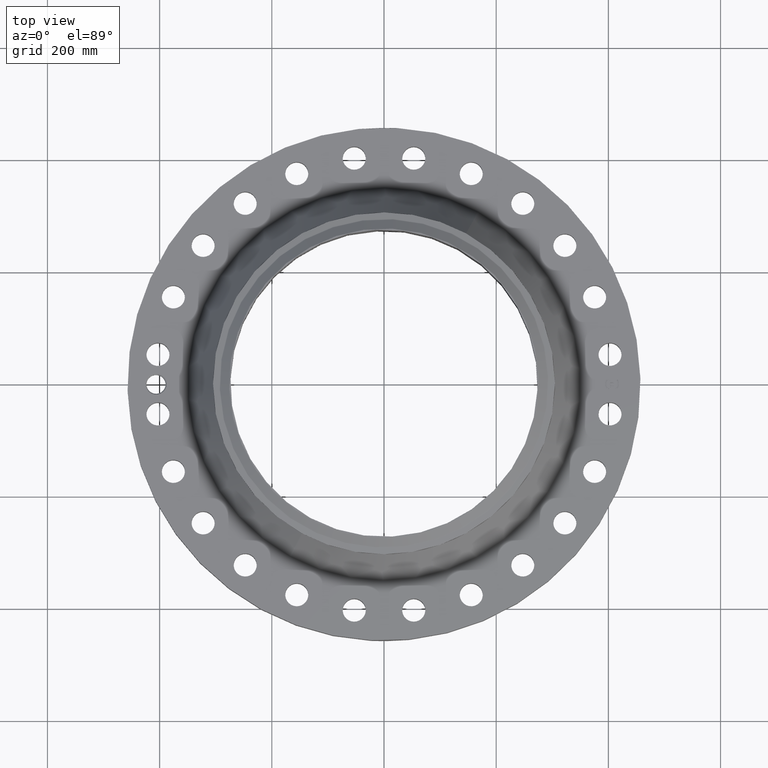
[diagram: clean part render]
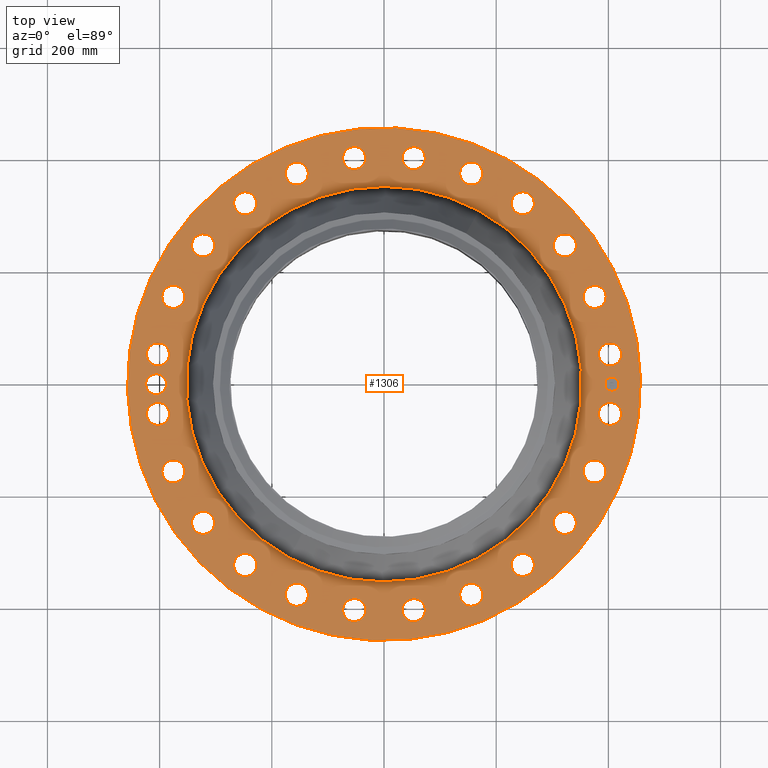
[diagram: same view with one face highlighted and labeled with its STEP entity id]
A machine part, top view. The second image highlights one B-rep face of the part: STEP entity #1306.
In plain terms, the highlighted planar face has unit normal (0, 0, -1).
Its self-contained STEP definition (entity closure, byte-faithful):
#58=AXIS2_PLACEMENT_3D('Circle Axis2P3D',#56,#57,$) ;
#686=AXIS2_PLACEMENT_3D('Circle Axis2P3D',#684,#685,$) ;
#786=AXIS2_PLACEMENT_3D('Plane Axis2P3D',#783,#784,#785) ;
#822=AXIS2_PLACEMENT_3D('Circle Axis2P3D',#820,#821,$) ;
#829=AXIS2_PLACEMENT_3D('Circle Axis2P3D',#827,#828,$) ;
#840=AXIS2_PLACEMENT_3D('Circle Axis2P3D',#838,#839,$) ;
#849=AXIS2_PLACEMENT_3D('Circle Axis2P3D',#847,#848,$) ;
#858=AXIS2_PLACEMENT_3D('Circle Axis2P3D',#856,#857,$) ;
#867=AXIS2_PLACEMENT_3D('Circle Axis2P3D',#865,#866,$) ;
#876=AXIS2_PLACEMENT_3D('Circle Axis2P3D',#874,#875,$) ;
#885=AXIS2_PLACEMENT_3D('Circle Axis2P3D',#883,#884,$) ;
#894=AXIS2_PLACEMENT_3D('Circle Axis2P3D',#892,#893,$) ;
#903=AXIS2_PLACEMENT_3D('Circle Axis2P3D',#901,#902,$) ;
#912=AXIS2_PLACEMENT_3D('Circle Axis2P3D',#910,#911,$) ;
#921=AXIS2_PLACEMENT_3D('Circle Axis2P3D',#919,#920,$) ;
#930=AXIS2_PLACEMENT_3D('Circle Axis2P3D',#928,#929,$) ;
#939=AXIS2_PLACEMENT_3D('Circle Axis2P3D',#937,#938,$) ;
#948=AXIS2_PLACEMENT_3D('Circle Axis2P3D',#946,#947,$) ;
#957=AXIS2_PLACEMENT_3D('Circle Axis2P3D',#955,#956,$) ;
#966=AXIS2_PLACEMENT_3D('Circle Axis2P3D',#964,#965,$) ;
#975=AXIS2_PLACEMENT_3D('Circle Axis2P3D',#973,#974,$) ;
#984=AXIS2_PLACEMENT_3D('Circle Axis2P3D',#982,#983,$) ;
#993=AXIS2_PLACEMENT_3D('Circle Axis2P3D',#991,#992,$) ;
#1002=AXIS2_PLACEMENT_3D('Circle Axis2P3D',#1000,#1001,$) ;
#1011=AXIS2_PLACEMENT_3D('Circle Axis2P3D',#1009,#1010,$) ;
#1020=AXIS2_PLACEMENT_3D('Circle Axis2P3D',#1018,#1019,$) ;
#1029=AXIS2_PLACEMENT_3D('Circle Axis2P3D',#1027,#1028,$) ;
#1038=AXIS2_PLACEMENT_3D('Circle Axis2P3D',#1036,#1037,$) ;
#1047=AXIS2_PLACEMENT_3D('Circle Axis2P3D',#1045,#1046,$) ;
#1056=AXIS2_PLACEMENT_3D('Circle Axis2P3D',#1054,#1055,$) ;
#1065=AXIS2_PLACEMENT_3D('Circle Axis2P3D',#1063,#1064,$) ;
#1074=AXIS2_PLACEMENT_3D('Circle Axis2P3D',#1072,#1073,$) ;
#1083=AXIS2_PLACEMENT_3D('Circle Axis2P3D',#1081,#1082,$) ;
#1092=AXIS2_PLACEMENT_3D('Circle Axis2P3D',#1090,#1091,$) ;
#1101=AXIS2_PLACEMENT_3D('Circle Axis2P3D',#1099,#1100,$) ;
#1110=AXIS2_PLACEMENT_3D('Circle Axis2P3D',#1108,#1109,$) ;
#1119=AXIS2_PLACEMENT_3D('Circle Axis2P3D',#1117,#1118,$) ;
#1128=AXIS2_PLACEMENT_3D('Circle Axis2P3D',#1126,#1127,$) ;
#1137=AXIS2_PLACEMENT_3D('Circle Axis2P3D',#1135,#1136,$) ;
#1146=AXIS2_PLACEMENT_3D('Circle Axis2P3D',#1144,#1145,$) ;
#1155=AXIS2_PLACEMENT_3D('Circle Axis2P3D',#1153,#1154,$) ;
#1164=AXIS2_PLACEMENT_3D('Circle Axis2P3D',#1162,#1163,$) ;
#1173=AXIS2_PLACEMENT_3D('Circle Axis2P3D',#1171,#1172,$) ;
#1182=AXIS2_PLACEMENT_3D('Circle Axis2P3D',#1180,#1181,$) ;
#1191=AXIS2_PLACEMENT_3D('Circle Axis2P3D',#1189,#1190,$) ;
#1200=AXIS2_PLACEMENT_3D('Circle Axis2P3D',#1198,#1199,$) ;
#1209=AXIS2_PLACEMENT_3D('Circle Axis2P3D',#1207,#1208,$) ;
#1218=AXIS2_PLACEMENT_3D('Circle Axis2P3D',#1216,#1217,$) ;
#1227=AXIS2_PLACEMENT_3D('Circle Axis2P3D',#1225,#1226,$) ;
#1236=AXIS2_PLACEMENT_3D('Circle Axis2P3D',#1234,#1235,$) ;
#1245=AXIS2_PLACEMENT_3D('Circle Axis2P3D',#1243,#1244,$) ;
#1254=AXIS2_PLACEMENT_3D('Circle Axis2P3D',#1252,#1253,$) ;
#1263=AXIS2_PLACEMENT_3D('Circle Axis2P3D',#1261,#1262,$) ;
#1272=AXIS2_PLACEMENT_3D('Circle Axis2P3D',#1270,#1271,$) ;
#1281=AXIS2_PLACEMENT_3D('Circle Axis2P3D',#1279,#1280,$) ;
#1290=AXIS2_PLACEMENT_3D('Circle Axis2P3D',#1288,#1289,$) ;
#1299=AXIS2_PLACEMENT_3D('Circle Axis2P3D',#1297,#1298,$) ;
#53=CARTESIAN_POINT('Vertex',(-8.62965969491,-15.7964861141,2.81000000001)) ;
#56=CARTESIAN_POINT('Axis2P3D Location',(0.,0.,2.81000000001)) ;
#60=CARTESIAN_POINT('Vertex',(8.62965969491,15.7964861141,2.81000000001)) ;
#684=CARTESIAN_POINT('Axis2P3D Location',(0.,0.,2.81000000001)) ;
#783=CARTESIAN_POINT('Axis2P3D Location',(0.,18.0000000001,2.81000000001)) ;
#793=CARTESIAN_POINT('Control Point',(-15.2500000001,0.,2.81000000001)) ;
#794=CARTESIAN_POINT('Control Point',(-15.2522636557,0.067368440323,2.81000000001)) ;
#795=CARTESIAN_POINT('Control Point',(-15.2620959539,0.134362458203,2.81000000001)) ;
#796=CARTESIAN_POINT('Control Point',(-15.2794431795,0.199837606875,2.81000000001)) ;
#797=CARTESIAN_POINT('Control Point',(-15.3185043249,0.299840813619,2.81000000001)) ;
#798=CARTESIAN_POINT('Control Point',(-15.3743969668,0.390606299989,2.81000000001)) ;
#799=CARTESIAN_POINT('Control Point',(-15.3973885703,0.422865715089,2.81000000001)) ;
#800=CARTESIAN_POINT('Control Point',(-15.4224510428,0.453448813399,2.81000000001)) ;
#801=CARTESIAN_POINT('Control Point',(-15.4494190683,0.482184252316,2.81000000001)) ;
#802=CARTESIAN_POINT('Vertex',(-15.2500000001,0.,2.81000000001)) ;
#804=CARTESIAN_POINT('Vertex',(-15.4494190683,0.482184252316,2.81000000001)) ;
#808=CARTESIAN_POINT('Control Point',(-15.2500000001,0.,2.81000000001)) ;
#809=CARTESIAN_POINT('Control Point',(-15.2522642724,-0.0673867935597,2.81000000001)) ;
#810=CARTESIAN_POINT('Control Point',(-15.2621012997,-0.134398962222,2.81000000001)) ;
#811=CARTESIAN_POINT('Control Point',(-15.2794475751,-0.199869113942,2.81000000001)) ;
#812=CARTESIAN_POINT('Control Point',(-15.3185243858,-0.299912176325,2.81000000001)) ;
#813=CARTESIAN_POINT('Control Point',(-15.3744144475,-0.390660983478,2.81000000001)) ;
#814=CARTESIAN_POINT('Control Point',(-15.3974350869,-0.422949173924,2.81000000001)) ;
#815=CARTESIAN_POINT('Control Point',(-15.4225255627,-0.453551402367,2.81000000001)) ;
#816=CARTESIAN_POINT('Control Point',(-15.4495190516,-0.48229839412,2.81000000001)) ;
#817=CARTESIAN_POINT('Vertex',(-15.4495190516,-0.48229839412,2.81000000001)) ;
#820=CARTESIAN_POINT('Axis2P3D Location',(-16.0000000001,-6.71378962923E-015,2.81000000001)) ;
#824=CARTESIAN_POINT('Vertex',(-16.6422807376,0.350879566067,2.81000000001)) ;
#827=CARTESIAN_POINT('Axis2P3D Location',(-16.0000000001,-6.71378962923E-015,2.81000000001)) ;
#838=CARTESIAN_POINT('Axis2P3D Location',(15.863117782,-2.08841907553,2.81000000001)) ;
#842=CARTESIAN_POINT('Vertex',(15.1522759069,-1.70008438926,2.81000000001)) ;
#844=CARTESIAN_POINT('Vertex',(16.5739596572,-2.4767537618,2.81000000001)) ;
#847=CARTESIAN_POINT('Axis2P3D Location',(15.863117782,-2.08841907553,2.81000000001)) ;
#856=CARTESIAN_POINT('Axis2P3D Location',(0.,0.,2.81000000001)) ;
#860=CARTESIAN_POINT('Vertex',(-6.65355365657,-12.1792482741,2.81000000001)) ;
#862=CARTESIAN_POINT('Vertex',(6.65355365657,12.1792482741,2.81000000001)) ;
#865=CARTESIAN_POINT('Axis2P3D Location',(0.,0.,2.81000000001)) ;
#874=CARTESIAN_POINT('Axis2P3D Location',(14.7820725202,-6.12293491787,2.81000000001)) ;
#878=CARTESIAN_POINT('Vertex',(15.3681846332,-6.68201683592,2.81000000001)) ;
#880=CARTESIAN_POINT('Vertex',(14.1959604073,-5.56385299981,2.81000000001)) ;
#883=CARTESIAN_POINT('Axis2P3D Location',(14.7820725202,-6.12293491787,2.81000000001)) ;
#892=CARTESIAN_POINT('Axis2P3D Location',(12.6936534447,-9.74018286418,2.81000000001)) ;
#896=CARTESIAN_POINT('Vertex',(13.1150932235,-10.4319115052,2.81000000001)) ;
#898=CARTESIAN_POINT('Vertex',(12.2722136659,-9.04845422313,2.81000000001)) ;
#901=CARTESIAN_POINT('Axis2P3D Location',(12.6936534447,-9.74018286418,2.81000000001)) ;
#910=CARTESIAN_POINT('Axis2P3D Location',(9.74018286418,-12.6936534447,2.81000000001)) ;
#914=CARTESIAN_POINT('Vertex',(9.9682298844,-13.470888645,2.81000000001)) ;
#916=CARTESIAN_POINT('Vertex',(9.51213584395,-11.9164182444,2.81000000001)) ;
#919=CARTESIAN_POINT('Axis2P3D Location',(9.74018286418,-12.6936534447,2.81000000001)) ;
#928=CARTESIAN_POINT('Axis2P3D Location',(6.12293491787,-14.7820725202,2.81000000001)) ;
#932=CARTESIAN_POINT('Vertex',(6.14204815195,-15.5918469853,2.81000000001)) ;
#934=CARTESIAN_POINT('Vertex',(6.10382168378,-13.9722980552,2.81000000001)) ;
#937=CARTESIAN_POINT('Axis2P3D Location',(6.12293491787,-14.7820725202,2.81000000001)) ;
#946=CARTESIAN_POINT('Axis2P3D Location',(2.08841907553,-15.863117782,2.81000000001)) ;
#950=CARTESIAN_POINT('Vertex',(1.89729598816,-16.6502467203,2.81000000001)) ;
#952=CARTESIAN_POINT('Vertex',(2.2795421629,-15.0759888438,2.81000000001)) ;
#955=CARTESIAN_POINT('Axis2P3D Location',(2.08841907553,-15.863117782,2.81000000001)) ;
#964=CARTESIAN_POINT('Axis2P3D Location',(-2.08841907553,-15.863117782,2.81000000001)) ;
#968=CARTESIAN_POINT('Vertex',(-2.4767537618,-16.5739596572,2.81000000001)) ;
#970=CARTESIAN_POINT('Vertex',(-1.70008438926,-15.1522759069,2.81000000001)) ;
#973=CARTESIAN_POINT('Axis2P3D Location',(-2.08841907553,-15.863117782,2.81000000001)) ;
#982=CARTESIAN_POINT('Axis2P3D Location',(-6.12293491787,-14.7820725202,2.81000000001)) ;
#986=CARTESIAN_POINT('Vertex',(-6.68201683592,-15.3681846332,2.81000000001)) ;
#988=CARTESIAN_POINT('Vertex',(-5.56385299981,-14.1959604073,2.81000000001)) ;
#991=CARTESIAN_POINT('Axis2P3D Location',(-6.12293491787,-14.7820725202,2.81000000001)) ;
#1000=CARTESIAN_POINT('Axis2P3D Location',(-9.74018286418,-12.6936534447,2.81000000001)) ;
#1004=CARTESIAN_POINT('Vertex',(-10.4319115052,-13.1150932235,2.81000000001)) ;
#1006=CARTESIAN_POINT('Vertex',(-9.04845422313,-12.2722136659,2.81000000001)) ;
#1009=CARTESIAN_POINT('Axis2P3D Location',(-9.74018286418,-12.6936534447,2.81000000001)) ;
#1018=CARTESIAN_POINT('Axis2P3D Location',(-12.6936534447,-9.74018286418,2.81000000001)) ;
#1022=CARTESIAN_POINT('Vertex',(-13.470888645,-9.9682298844,2.81000000001)) ;
#1024=CARTESIAN_POINT('Vertex',(-11.9164182444,-9.51213584395,2.81000000001)) ;
#1027=CARTESIAN_POINT('Axis2P3D Location',(-12.6936534447,-9.74018286418,2.81000000001)) ;
#1036=CARTESIAN_POINT('Axis2P3D Location',(-14.7820725202,-6.12293491787,2.81000000001)) ;
#1040=CARTESIAN_POINT('Vertex',(-15.5918469853,-6.14204815195,2.81000000001)) ;
#1042=CARTESIAN_POINT('Vertex',(-13.9722980552,-6.10382168378,2.81000000001)) ;
#1045=CARTESIAN_POINT('Axis2P3D Location',(-14.7820725202,-6.12293491787,2.81000000001)) ;
#1054=CARTESIAN_POINT('Axis2P3D Location',(-15.863117782,-2.08841907553,2.81000000001)) ;
#1058=CARTESIAN_POINT('Vertex',(-16.6502467203,-1.89729598816,2.81000000001)) ;
#1060=CARTESIAN_POINT('Vertex',(-15.0759888438,-2.2795421629,2.81000000001)) ;
#1063=CARTESIAN_POINT('Axis2P3D Location',(-15.863117782,-2.08841907553,2.81000000001)) ;
#1072=CARTESIAN_POINT('Axis2P3D Location',(-15.863117782,2.08841907553,2.81000000001)) ;
#1076=CARTESIAN_POINT('Vertex',(-16.5739596572,2.4767537618,2.81000000001)) ;
#1078=CARTESIAN_POINT('Vertex',(-15.1522759069,1.70008438926,2.81000000001)) ;
#1081=CARTESIAN_POINT('Axis2P3D Location',(-15.863117782,2.08841907553,2.81000000001)) ;
#1090=CARTESIAN_POINT('Axis2P3D Location',(-14.7820725202,6.12293491787,2.81000000001)) ;
#1094=CARTESIAN_POINT('Vertex',(-15.3681846332,6.68201683592,2.81000000001)) ;
#1096=CARTESIAN_POINT('Vertex',(-14.1959604073,5.56385299981,2.81000000001)) ;
#1099=CARTESIAN_POINT('Axis2P3D Location',(-14.7820725202,6.12293491787,2.81000000001)) ;
#1108=CARTESIAN_POINT('Axis2P3D Location',(-12.6936534447,9.74018286418,2.81000000001)) ;
#1112=CARTESIAN_POINT('Vertex',(-13.1150932235,10.4319115052,2.81000000001)) ;
#1114=CARTESIAN_POINT('Vertex',(-12.2722136659,9.04845422313,2.81000000001)) ;
#1117=CARTESIAN_POINT('Axis2P3D Location',(-12.6936534447,9.74018286418,2.81000000001)) ;
#1126=CARTESIAN_POINT('Axis2P3D Location',(-9.74018286418,12.6936534447,2.81000000001)) ;
#1130=CARTESIAN_POINT('Vertex',(-9.96822988441,13.470888645,2.81000000001)) ;
#1132=CARTESIAN_POINT('Vertex',(-9.51213584395,11.9164182444,2.81000000001)) ;
#1135=CARTESIAN_POINT('Axis2P3D Location',(-9.74018286418,12.6936534447,2.81000000001)) ;
#1144=CARTESIAN_POINT('Axis2P3D Location',(-6.12293491787,14.7820725202,2.81000000001)) ;
#1148=CARTESIAN_POINT('Vertex',(-6.14204815195,15.5918469853,2.81000000001)) ;
#1150=CARTESIAN_POINT('Vertex',(-6.10382168378,13.9722980552,2.81000000001)) ;
#1153=CARTESIAN_POINT('Axis2P3D Location',(-6.12293491787,14.7820725202,2.81000000001)) ;
#1162=CARTESIAN_POINT('Axis2P3D Location',(-2.08841907553,15.863117782,2.81000000001)) ;
#1166=CARTESIAN_POINT('Vertex',(-1.89729598816,16.6502467203,2.81000000001)) ;
#1168=CARTESIAN_POINT('Vertex',(-2.2795421629,15.0759888438,2.81000000001)) ;
#1171=CARTESIAN_POINT('Axis2P3D Location',(-2.08841907553,15.863117782,2.81000000001)) ;
#1180=CARTESIAN_POINT('Axis2P3D Location',(2.08841907553,15.863117782,2.81000000001)) ;
#1184=CARTESIAN_POINT('Vertex',(2.4767537618,16.5739596572,2.81000000001)) ;
#1186=CARTESIAN_POINT('Vertex',(1.70008438926,15.1522759069,2.81000000001)) ;
#1189=CARTESIAN_POINT('Axis2P3D Location',(2.08841907553,15.863117782,2.81000000001)) ;
#1198=CARTESIAN_POINT('Axis2P3D Location',(6.12293491787,14.7820725202,2.81000000001)) ;
#1202=CARTESIAN_POINT('Vertex',(6.68201683592,15.3681846332,2.81000000001)) ;
#1204=CARTESIAN_POINT('Vertex',(5.56385299981,14.1959604073,2.81000000001)) ;
#1207=CARTESIAN_POINT('Axis2P3D Location',(6.12293491787,14.7820725202,2.81000000001)) ;
#1216=CARTESIAN_POINT('Axis2P3D Location',(9.74018286418,12.6936534447,2.81000000001)) ;
#1220=CARTESIAN_POINT('Vertex',(10.4319115052,13.1150932235,2.81000000001)) ;
#1222=CARTESIAN_POINT('Vertex',(9.04845422313,12.2722136659,2.81000000001)) ;
#1225=CARTESIAN_POINT('Axis2P3D Location',(9.74018286418,12.6936534447,2.81000000001)) ;
#1234=CARTESIAN_POINT('Axis2P3D Location',(12.6936534447,9.74018286418,2.81000000001)) ;
#1238=CARTESIAN_POINT('Vertex',(13.470888645,9.96822988441,2.81000000001)) ;
#1240=CARTESIAN_POINT('Vertex',(11.9164182444,9.51213584395,2.81000000001)) ;
#1243=CARTESIAN_POINT('Axis2P3D Location',(12.6936534447,9.74018286418,2.81000000001)) ;
#1252=CARTESIAN_POINT('Axis2P3D Location',(14.7820725202,6.12293491787,2.81000000001)) ;
#1256=CARTESIAN_POINT('Vertex',(15.5918469853,6.14204815195,2.81000000001)) ;
#1258=CARTESIAN_POINT('Vertex',(13.9722980552,6.10382168378,2.81000000001)) ;
#1261=CARTESIAN_POINT('Axis2P3D Location',(14.7820725202,6.12293491787,2.81000000001)) ;
#1270=CARTESIAN_POINT('Axis2P3D Location',(15.863117782,2.08841907553,2.81000000001)) ;
#1274=CARTESIAN_POINT('Vertex',(16.6502467203,1.89729598816,2.81000000001)) ;
#1276=CARTESIAN_POINT('Vertex',(15.0759888438,2.2795421629,2.81000000001)) ;
#1279=CARTESIAN_POINT('Axis2P3D Location',(15.863117782,2.08841907553,2.81000000001)) ;
#1288=CARTESIAN_POINT('Axis2P3D Location',(16.0000000001,0.,2.81000000001)) ;
#1292=CARTESIAN_POINT('Vertex',(16.0000000001,0.499999995002,2.81000000001)) ;
#1294=CARTESIAN_POINT('Vertex',(16.0000000001,-0.499999995002,2.81000000001)) ;
#1297=CARTESIAN_POINT('Axis2P3D Location',(16.0000000001,0.,2.81000000001)) ;
#57=DIRECTION('Axis2P3D Direction',(0.,0.,-0.0393700787402)) ;
#685=DIRECTION('Axis2P3D Direction',(0.,0.,-0.0393700787402)) ;
#784=DIRECTION('Axis2P3D Direction',(0.,0.,-0.0393700787402)) ;
#785=DIRECTION('Axis2P3D XDirection',(0.0393700787402,0.,0.)) ;
#821=DIRECTION('Axis2P3D Direction',(0.,0.,-0.0393700787402)) ;
#828=DIRECTION('Axis2P3D Direction',(0.,0.,-0.0393700787402)) ;
#839=DIRECTION('Axis2P3D Direction',(0.,0.,-0.0393700787402)) ;
#848=DIRECTION('Axis2P3D Direction',(0.,0.,-0.0393700787402)) ;
#857=DIRECTION('Axis2P3D Direction',(0.,0.,-0.0393700787402)) ;
#866=DIRECTION('Axis2P3D Direction',(0.,0.,-0.0393700787402)) ;
#875=DIRECTION('Axis2P3D Direction',(0.,0.,-0.0393700787402)) ;
#884=DIRECTION('Axis2P3D Direction',(0.,0.,-0.0393700787402)) ;
#893=DIRECTION('Axis2P3D Direction',(0.,0.,-0.0393700787402)) ;
#902=DIRECTION('Axis2P3D Direction',(0.,0.,-0.0393700787402)) ;
#911=DIRECTION('Axis2P3D Direction',(0.,0.,-0.0393700787402)) ;
#920=DIRECTION('Axis2P3D Direction',(0.,0.,-0.0393700787402)) ;
#929=DIRECTION('Axis2P3D Direction',(0.,0.,-0.0393700787402)) ;
#938=DIRECTION('Axis2P3D Direction',(0.,0.,-0.0393700787402)) ;
#947=DIRECTION('Axis2P3D Direction',(0.,0.,-0.0393700787402)) ;
#956=DIRECTION('Axis2P3D Direction',(0.,0.,-0.0393700787402)) ;
#965=DIRECTION('Axis2P3D Direction',(0.,0.,-0.0393700787402)) ;
#974=DIRECTION('Axis2P3D Direction',(0.,0.,-0.0393700787402)) ;
#983=DIRECTION('Axis2P3D Direction',(0.,0.,-0.0393700787402)) ;
#992=DIRECTION('Axis2P3D Direction',(0.,0.,-0.0393700787402)) ;
#1001=DIRECTION('Axis2P3D Direction',(0.,0.,-0.0393700787402)) ;
#1010=DIRECTION('Axis2P3D Direction',(0.,0.,-0.0393700787402)) ;
#1019=DIRECTION('Axis2P3D Direction',(0.,0.,-0.0393700787402)) ;
#1028=DIRECTION('Axis2P3D Direction',(0.,0.,-0.0393700787402)) ;
#1037=DIRECTION('Axis2P3D Direction',(0.,0.,-0.0393700787402)) ;
#1046=DIRECTION('Axis2P3D Direction',(0.,0.,-0.0393700787402)) ;
#1055=DIRECTION('Axis2P3D Direction',(0.,0.,-0.0393700787402)) ;
#1064=DIRECTION('Axis2P3D Direction',(0.,0.,-0.0393700787402)) ;
#1073=DIRECTION('Axis2P3D Direction',(0.,0.,-0.0393700787402)) ;
#1082=DIRECTION('Axis2P3D Direction',(0.,0.,-0.0393700787402)) ;
#1091=DIRECTION('Axis2P3D Direction',(0.,0.,-0.0393700787402)) ;
#1100=DIRECTION('Axis2P3D Direction',(0.,0.,-0.0393700787402)) ;
#1109=DIRECTION('Axis2P3D Direction',(0.,0.,-0.0393700787402)) ;
#1118=DIRECTION('Axis2P3D Direction',(0.,0.,-0.0393700787402)) ;
#1127=DIRECTION('Axis2P3D Direction',(0.,0.,-0.0393700787402)) ;
#1136=DIRECTION('Axis2P3D Direction',(0.,0.,-0.0393700787402)) ;
#1145=DIRECTION('Axis2P3D Direction',(0.,0.,-0.0393700787402)) ;
#1154=DIRECTION('Axis2P3D Direction',(0.,0.,-0.0393700787402)) ;
#1163=DIRECTION('Axis2P3D Direction',(0.,0.,-0.0393700787402)) ;
#1172=DIRECTION('Axis2P3D Direction',(0.,0.,-0.0393700787402)) ;
#1181=DIRECTION('Axis2P3D Direction',(0.,0.,-0.0393700787402)) ;
#1190=DIRECTION('Axis2P3D Direction',(0.,0.,-0.0393700787402)) ;
#1199=DIRECTION('Axis2P3D Direction',(0.,0.,-0.0393700787402)) ;
#1208=DIRECTION('Axis2P3D Direction',(0.,0.,-0.0393700787402)) ;
#1217=DIRECTION('Axis2P3D Direction',(0.,0.,-0.0393700787402)) ;
#1226=DIRECTION('Axis2P3D Direction',(0.,0.,-0.0393700787402)) ;
#1235=DIRECTION('Axis2P3D Direction',(0.,0.,-0.0393700787402)) ;
#1244=DIRECTION('Axis2P3D Direction',(0.,0.,-0.0393700787402)) ;
#1253=DIRECTION('Axis2P3D Direction',(0.,0.,-0.0393700787402)) ;
#1262=DIRECTION('Axis2P3D Direction',(0.,0.,-0.0393700787402)) ;
#1271=DIRECTION('Axis2P3D Direction',(0.,0.,-0.0393700787402)) ;
#1280=DIRECTION('Axis2P3D Direction',(0.,0.,-0.0393700787402)) ;
#1289=DIRECTION('Axis2P3D Direction',(0.,0.,-0.0393700787402)) ;
#1298=DIRECTION('Axis2P3D Direction',(0.,0.,-0.0393700787402)) ;
#789=ORIENTED_EDGE('',*,*,#688,.F.) ;
#790=ORIENTED_EDGE('',*,*,#62,.F.) ;
#833=ORIENTED_EDGE('',*,*,#806,.F.) ;
#834=ORIENTED_EDGE('',*,*,#819,.T.) ;
#835=ORIENTED_EDGE('',*,*,#826,.T.) ;
#836=ORIENTED_EDGE('',*,*,#831,.T.) ;
#853=ORIENTED_EDGE('',*,*,#846,.T.) ;
#854=ORIENTED_EDGE('',*,*,#851,.T.) ;
#871=ORIENTED_EDGE('',*,*,#864,.T.) ;
#872=ORIENTED_EDGE('',*,*,#869,.T.) ;
#889=ORIENTED_EDGE('',*,*,#882,.T.) ;
#890=ORIENTED_EDGE('',*,*,#887,.T.) ;
#907=ORIENTED_EDGE('',*,*,#900,.T.) ;
#908=ORIENTED_EDGE('',*,*,#905,.T.) ;
#925=ORIENTED_EDGE('',*,*,#918,.T.) ;
#926=ORIENTED_EDGE('',*,*,#923,.T.) ;
#943=ORIENTED_EDGE('',*,*,#936,.T.) ;
#944=ORIENTED_EDGE('',*,*,#941,.T.) ;
#961=ORIENTED_EDGE('',*,*,#954,.T.) ;
#962=ORIENTED_EDGE('',*,*,#959,.T.) ;
#979=ORIENTED_EDGE('',*,*,#972,.T.) ;
#980=ORIENTED_EDGE('',*,*,#977,.T.) ;
#997=ORIENTED_EDGE('',*,*,#990,.T.) ;
#998=ORIENTED_EDGE('',*,*,#995,.T.) ;
#1015=ORIENTED_EDGE('',*,*,#1008,.T.) ;
#1016=ORIENTED_EDGE('',*,*,#1013,.T.) ;
#1033=ORIENTED_EDGE('',*,*,#1026,.T.) ;
#1034=ORIENTED_EDGE('',*,*,#1031,.T.) ;
#1051=ORIENTED_EDGE('',*,*,#1044,.T.) ;
#1052=ORIENTED_EDGE('',*,*,#1049,.T.) ;
#1069=ORIENTED_EDGE('',*,*,#1062,.T.) ;
#1070=ORIENTED_EDGE('',*,*,#1067,.T.) ;
#1087=ORIENTED_EDGE('',*,*,#1080,.T.) ;
#1088=ORIENTED_EDGE('',*,*,#1085,.T.) ;
#1105=ORIENTED_EDGE('',*,*,#1098,.T.) ;
#1106=ORIENTED_EDGE('',*,*,#1103,.T.) ;
#1123=ORIENTED_EDGE('',*,*,#1116,.T.) ;
#1124=ORIENTED_EDGE('',*,*,#1121,.T.) ;
#1141=ORIENTED_EDGE('',*,*,#1134,.T.) ;
#1142=ORIENTED_EDGE('',*,*,#1139,.T.) ;
#1159=ORIENTED_EDGE('',*,*,#1152,.T.) ;
#1160=ORIENTED_EDGE('',*,*,#1157,.T.) ;
#1177=ORIENTED_EDGE('',*,*,#1170,.T.) ;
#1178=ORIENTED_EDGE('',*,*,#1175,.T.) ;
#1195=ORIENTED_EDGE('',*,*,#1188,.T.) ;
#1196=ORIENTED_EDGE('',*,*,#1193,.T.) ;
#1213=ORIENTED_EDGE('',*,*,#1206,.T.) ;
#1214=ORIENTED_EDGE('',*,*,#1211,.T.) ;
#1231=ORIENTED_EDGE('',*,*,#1224,.T.) ;
#1232=ORIENTED_EDGE('',*,*,#1229,.T.) ;
#1249=ORIENTED_EDGE('',*,*,#1242,.T.) ;
#1250=ORIENTED_EDGE('',*,*,#1247,.T.) ;
#1267=ORIENTED_EDGE('',*,*,#1260,.T.) ;
#1268=ORIENTED_EDGE('',*,*,#1265,.T.) ;
#1285=ORIENTED_EDGE('',*,*,#1278,.T.) ;
#1286=ORIENTED_EDGE('',*,*,#1283,.T.) ;
#1303=ORIENTED_EDGE('',*,*,#1296,.T.) ;
#1304=ORIENTED_EDGE('',*,*,#1301,.T.) ;
#837=FACE_BOUND('',#832,.T.) ;
#855=FACE_BOUND('',#852,.T.) ;
#873=FACE_BOUND('',#870,.T.) ;
#891=FACE_BOUND('',#888,.T.) ;
#909=FACE_BOUND('',#906,.T.) ;
#927=FACE_BOUND('',#924,.T.) ;
#945=FACE_BOUND('',#942,.T.) ;
#963=FACE_BOUND('',#960,.T.) ;
#981=FACE_BOUND('',#978,.T.) ;
#999=FACE_BOUND('',#996,.T.) ;
#1017=FACE_BOUND('',#1014,.T.) ;
#1035=FACE_BOUND('',#1032,.T.) ;
#1053=FACE_BOUND('',#1050,.T.) ;
#1071=FACE_BOUND('',#1068,.T.) ;
#1089=FACE_BOUND('',#1086,.T.) ;
#1107=FACE_BOUND('',#1104,.T.) ;
#1125=FACE_BOUND('',#1122,.T.) ;
#1143=FACE_BOUND('',#1140,.T.) ;
#1161=FACE_BOUND('',#1158,.T.) ;
#1179=FACE_BOUND('',#1176,.T.) ;
#1197=FACE_BOUND('',#1194,.T.) ;
#1215=FACE_BOUND('',#1212,.T.) ;
#1233=FACE_BOUND('',#1230,.T.) ;
#1251=FACE_BOUND('',#1248,.T.) ;
#1269=FACE_BOUND('',#1266,.T.) ;
#1287=FACE_BOUND('',#1284,.T.) ;
#1305=FACE_BOUND('',#1302,.T.) ;
#1306=ADVANCED_FACE('PartBody',(#791,#837,#855,#873,#891,#909,#927,#945,#963,#981,#999,#1017,#1035,#1053,#1071,#1089,#1107,#1125,#1143,#1161,#1179,#1197,#1215,#1233,#1251,#1269,#1287,#1305),#787,.F.) ;
#792=B_SPLINE_CURVE_WITH_KNOTS('',5,(#793,#794,#795,#796,#797,#798,#799,#800,#801),.UNSPECIFIED.,.F.,.U.,(6,3,6),(0.,11.8008766732,18.7839550773),.UNSPECIFIED.) ;
#807=B_SPLINE_CURVE_WITH_KNOTS('',5,(#808,#809,#810,#811,#812,#813,#814,#815,#816),.UNSPECIFIED.,.F.,.U.,(6,3,6),(0.,11.8040915953,18.8043463733),.UNSPECIFIED.) ;
#59=CIRCLE('generated circle',#58,18.0000000001) ;
#687=CIRCLE('generated circle',#686,18.0000000001) ;
#823=CIRCLE('generated circle',#822,0.731875000003) ;
#830=CIRCLE('generated circle',#829,0.731875000003) ;
#841=CIRCLE('generated circle',#840,0.810000000003) ;
#850=CIRCLE('generated circle',#849,0.810000000003) ;
#859=CIRCLE('generated circle',#858,13.8781794477) ;
#868=CIRCLE('generated circle',#867,13.8781794477) ;
#877=CIRCLE('generated circle',#876,0.810000000003) ;
#886=CIRCLE('generated circle',#885,0.810000000003) ;
#895=CIRCLE('generated circle',#894,0.810000000003) ;
#904=CIRCLE('generated circle',#903,0.810000000003) ;
#913=CIRCLE('generated circle',#912,0.810000000003) ;
#922=CIRCLE('generated circle',#921,0.810000000003) ;
#931=CIRCLE('generated circle',#930,0.810000000003) ;
#940=CIRCLE('generated circle',#939,0.810000000003) ;
#949=CIRCLE('generated circle',#948,0.810000000003) ;
#958=CIRCLE('generated circle',#957,0.810000000003) ;
#967=CIRCLE('generated circle',#966,0.810000000003) ;
#976=CIRCLE('generated circle',#975,0.810000000003) ;
#985=CIRCLE('generated circle',#984,0.810000000003) ;
#994=CIRCLE('generated circle',#993,0.810000000003) ;
#1003=CIRCLE('generated circle',#1002,0.810000000003) ;
#1012=CIRCLE('generated circle',#1011,0.810000000003) ;
#1021=CIRCLE('generated circle',#1020,0.810000000003) ;
#1030=CIRCLE('generated circle',#1029,0.810000000003) ;
#1039=CIRCLE('generated circle',#1038,0.810000000003) ;
#1048=CIRCLE('generated circle',#1047,0.810000000003) ;
#1057=CIRCLE('generated circle',#1056,0.810000000003) ;
#1066=CIRCLE('generated circle',#1065,0.810000000003) ;
#1075=CIRCLE('generated circle',#1074,0.810000000003) ;
#1084=CIRCLE('generated circle',#1083,0.810000000003) ;
#1093=CIRCLE('generated circle',#1092,0.810000000003) ;
#1102=CIRCLE('generated circle',#1101,0.810000000003) ;
#1111=CIRCLE('generated circle',#1110,0.810000000003) ;
#1120=CIRCLE('generated circle',#1119,0.810000000003) ;
#1129=CIRCLE('generated circle',#1128,0.810000000003) ;
#1138=CIRCLE('generated circle',#1137,0.810000000003) ;
#1147=CIRCLE('generated circle',#1146,0.810000000003) ;
#1156=CIRCLE('generated circle',#1155,0.810000000003) ;
#1165=CIRCLE('generated circle',#1164,0.810000000003) ;
#1174=CIRCLE('generated circle',#1173,0.810000000003) ;
#1183=CIRCLE('generated circle',#1182,0.810000000003) ;
#1192=CIRCLE('generated circle',#1191,0.810000000003) ;
#1201=CIRCLE('generated circle',#1200,0.810000000003) ;
#1210=CIRCLE('generated circle',#1209,0.810000000003) ;
#1219=CIRCLE('generated circle',#1218,0.810000000003) ;
#1228=CIRCLE('generated circle',#1227,0.810000000003) ;
#1237=CIRCLE('generated circle',#1236,0.810000000003) ;
#1246=CIRCLE('generated circle',#1245,0.810000000003) ;
#1255=CIRCLE('generated circle',#1254,0.810000000003) ;
#1264=CIRCLE('generated circle',#1263,0.810000000003) ;
#1273=CIRCLE('generated circle',#1272,0.810000000003) ;
#1282=CIRCLE('generated circle',#1281,0.810000000003) ;
#1291=CIRCLE('generated circle',#1290,0.499999995002) ;
#1300=CIRCLE('generated circle',#1299,0.499999995002) ;
#62=EDGE_CURVE('',#54,#61,#59,.T.) ;
#688=EDGE_CURVE('',#61,#54,#687,.T.) ;
#806=EDGE_CURVE('',#803,#805,#792,.T.) ;
#819=EDGE_CURVE('',#803,#818,#807,.T.) ;
#826=EDGE_CURVE('',#818,#825,#823,.T.) ;
#831=EDGE_CURVE('',#825,#805,#830,.T.) ;
#846=EDGE_CURVE('',#843,#845,#841,.T.) ;
#851=EDGE_CURVE('',#845,#843,#850,.T.) ;
#864=EDGE_CURVE('',#861,#863,#859,.T.) ;
#869=EDGE_CURVE('',#863,#861,#868,.T.) ;
#882=EDGE_CURVE('',#879,#881,#877,.T.) ;
#887=EDGE_CURVE('',#881,#879,#886,.T.) ;
#900=EDGE_CURVE('',#897,#899,#895,.T.) ;
#905=EDGE_CURVE('',#899,#897,#904,.T.) ;
#918=EDGE_CURVE('',#915,#917,#913,.T.) ;
#923=EDGE_CURVE('',#917,#915,#922,.T.) ;
#936=EDGE_CURVE('',#933,#935,#931,.T.) ;
#941=EDGE_CURVE('',#935,#933,#940,.T.) ;
#954=EDGE_CURVE('',#951,#953,#949,.T.) ;
#959=EDGE_CURVE('',#953,#951,#958,.T.) ;
#972=EDGE_CURVE('',#969,#971,#967,.T.) ;
#977=EDGE_CURVE('',#971,#969,#976,.T.) ;
#990=EDGE_CURVE('',#987,#989,#985,.T.) ;
#995=EDGE_CURVE('',#989,#987,#994,.T.) ;
#1008=EDGE_CURVE('',#1005,#1007,#1003,.T.) ;
#1013=EDGE_CURVE('',#1007,#1005,#1012,.T.) ;
#1026=EDGE_CURVE('',#1023,#1025,#1021,.T.) ;
#1031=EDGE_CURVE('',#1025,#1023,#1030,.T.) ;
#1044=EDGE_CURVE('',#1041,#1043,#1039,.T.) ;
#1049=EDGE_CURVE('',#1043,#1041,#1048,.T.) ;
#1062=EDGE_CURVE('',#1059,#1061,#1057,.T.) ;
#1067=EDGE_CURVE('',#1061,#1059,#1066,.T.) ;
#1080=EDGE_CURVE('',#1077,#1079,#1075,.T.) ;
#1085=EDGE_CURVE('',#1079,#1077,#1084,.T.) ;
#1098=EDGE_CURVE('',#1095,#1097,#1093,.T.) ;
#1103=EDGE_CURVE('',#1097,#1095,#1102,.T.) ;
#1116=EDGE_CURVE('',#1113,#1115,#1111,.T.) ;
#1121=EDGE_CURVE('',#1115,#1113,#1120,.T.) ;
#1134=EDGE_CURVE('',#1131,#1133,#1129,.T.) ;
#1139=EDGE_CURVE('',#1133,#1131,#1138,.T.) ;
#1152=EDGE_CURVE('',#1149,#1151,#1147,.T.) ;
#1157=EDGE_CURVE('',#1151,#1149,#1156,.T.) ;
#1170=EDGE_CURVE('',#1167,#1169,#1165,.T.) ;
#1175=EDGE_CURVE('',#1169,#1167,#1174,.T.) ;
#1188=EDGE_CURVE('',#1185,#1187,#1183,.T.) ;
#1193=EDGE_CURVE('',#1187,#1185,#1192,.T.) ;
#1206=EDGE_CURVE('',#1203,#1205,#1201,.T.) ;
#1211=EDGE_CURVE('',#1205,#1203,#1210,.T.) ;
#1224=EDGE_CURVE('',#1221,#1223,#1219,.T.) ;
#1229=EDGE_CURVE('',#1223,#1221,#1228,.T.) ;
#1242=EDGE_CURVE('',#1239,#1241,#1237,.T.) ;
#1247=EDGE_CURVE('',#1241,#1239,#1246,.T.) ;
#1260=EDGE_CURVE('',#1257,#1259,#1255,.T.) ;
#1265=EDGE_CURVE('',#1259,#1257,#1264,.T.) ;
#1278=EDGE_CURVE('',#1275,#1277,#1273,.T.) ;
#1283=EDGE_CURVE('',#1277,#1275,#1282,.T.) ;
#1296=EDGE_CURVE('',#1293,#1295,#1291,.T.) ;
#1301=EDGE_CURVE('',#1295,#1293,#1300,.T.) ;
#788=EDGE_LOOP('',(#789,#790)) ;
#832=EDGE_LOOP('',(#833,#834,#835,#836)) ;
#852=EDGE_LOOP('',(#853,#854)) ;
#870=EDGE_LOOP('',(#871,#872)) ;
#888=EDGE_LOOP('',(#889,#890)) ;
#906=EDGE_LOOP('',(#907,#908)) ;
#924=EDGE_LOOP('',(#925,#926)) ;
#942=EDGE_LOOP('',(#943,#944)) ;
#960=EDGE_LOOP('',(#961,#962)) ;
#978=EDGE_LOOP('',(#979,#980)) ;
#996=EDGE_LOOP('',(#997,#998)) ;
#1014=EDGE_LOOP('',(#1015,#1016)) ;
#1032=EDGE_LOOP('',(#1033,#1034)) ;
#1050=EDGE_LOOP('',(#1051,#1052)) ;
#1068=EDGE_LOOP('',(#1069,#1070)) ;
#1086=EDGE_LOOP('',(#1087,#1088)) ;
#1104=EDGE_LOOP('',(#1105,#1106)) ;
#1122=EDGE_LOOP('',(#1123,#1124)) ;
#1140=EDGE_LOOP('',(#1141,#1142)) ;
#1158=EDGE_LOOP('',(#1159,#1160)) ;
#1176=EDGE_LOOP('',(#1177,#1178)) ;
#1194=EDGE_LOOP('',(#1195,#1196)) ;
#1212=EDGE_LOOP('',(#1213,#1214)) ;
#1230=EDGE_LOOP('',(#1231,#1232)) ;
#1248=EDGE_LOOP('',(#1249,#1250)) ;
#1266=EDGE_LOOP('',(#1267,#1268)) ;
#1284=EDGE_LOOP('',(#1285,#1286)) ;
#1302=EDGE_LOOP('',(#1303,#1304)) ;
#791=FACE_OUTER_BOUND('',#788,.T.) ;
#787=PLANE('',#786) ;
#54=VERTEX_POINT('',#53) ;
#61=VERTEX_POINT('',#60) ;
#803=VERTEX_POINT('',#802) ;
#805=VERTEX_POINT('',#804) ;
#818=VERTEX_POINT('',#817) ;
#825=VERTEX_POINT('',#824) ;
#843=VERTEX_POINT('',#842) ;
#845=VERTEX_POINT('',#844) ;
#861=VERTEX_POINT('',#860) ;
#863=VERTEX_POINT('',#862) ;
#879=VERTEX_POINT('',#878) ;
#881=VERTEX_POINT('',#880) ;
#897=VERTEX_POINT('',#896) ;
#899=VERTEX_POINT('',#898) ;
#915=VERTEX_POINT('',#914) ;
#917=VERTEX_POINT('',#916) ;
#933=VERTEX_POINT('',#932) ;
#935=VERTEX_POINT('',#934) ;
#951=VERTEX_POINT('',#950) ;
#953=VERTEX_POINT('',#952) ;
#969=VERTEX_POINT('',#968) ;
#971=VERTEX_POINT('',#970) ;
#987=VERTEX_POINT('',#986) ;
#989=VERTEX_POINT('',#988) ;
#1005=VERTEX_POINT('',#1004) ;
#1007=VERTEX_POINT('',#1006) ;
#1023=VERTEX_POINT('',#1022) ;
#1025=VERTEX_POINT('',#1024) ;
#1041=VERTEX_POINT('',#1040) ;
#1043=VERTEX_POINT('',#1042) ;
#1059=VERTEX_POINT('',#1058) ;
#1061=VERTEX_POINT('',#1060) ;
#1077=VERTEX_POINT('',#1076) ;
#1079=VERTEX_POINT('',#1078) ;
#1095=VERTEX_POINT('',#1094) ;
#1097=VERTEX_POINT('',#1096) ;
#1113=VERTEX_POINT('',#1112) ;
#1115=VERTEX_POINT('',#1114) ;
#1131=VERTEX_POINT('',#1130) ;
#1133=VERTEX_POINT('',#1132) ;
#1149=VERTEX_POINT('',#1148) ;
#1151=VERTEX_POINT('',#1150) ;
#1167=VERTEX_POINT('',#1166) ;
#1169=VERTEX_POINT('',#1168) ;
#1185=VERTEX_POINT('',#1184) ;
#1187=VERTEX_POINT('',#1186) ;
#1203=VERTEX_POINT('',#1202) ;
#1205=VERTEX_POINT('',#1204) ;
#1221=VERTEX_POINT('',#1220) ;
#1223=VERTEX_POINT('',#1222) ;
#1239=VERTEX_POINT('',#1238) ;
#1241=VERTEX_POINT('',#1240) ;
#1257=VERTEX_POINT('',#1256) ;
#1259=VERTEX_POINT('',#1258) ;
#1275=VERTEX_POINT('',#1274) ;
#1277=VERTEX_POINT('',#1276) ;
#1293=VERTEX_POINT('',#1292) ;
#1295=VERTEX_POINT('',#1294) ;